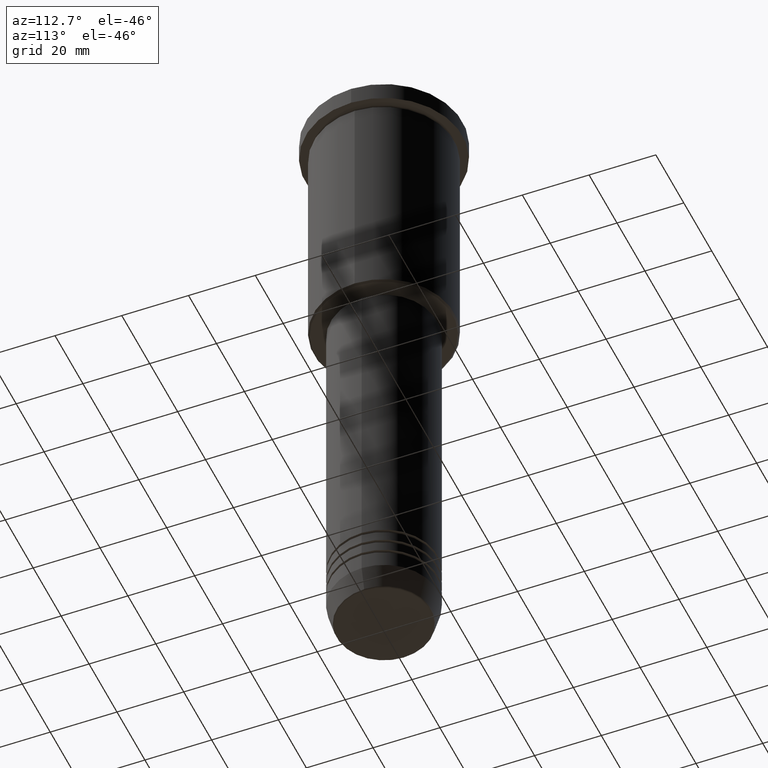
[diagram: clean part render]
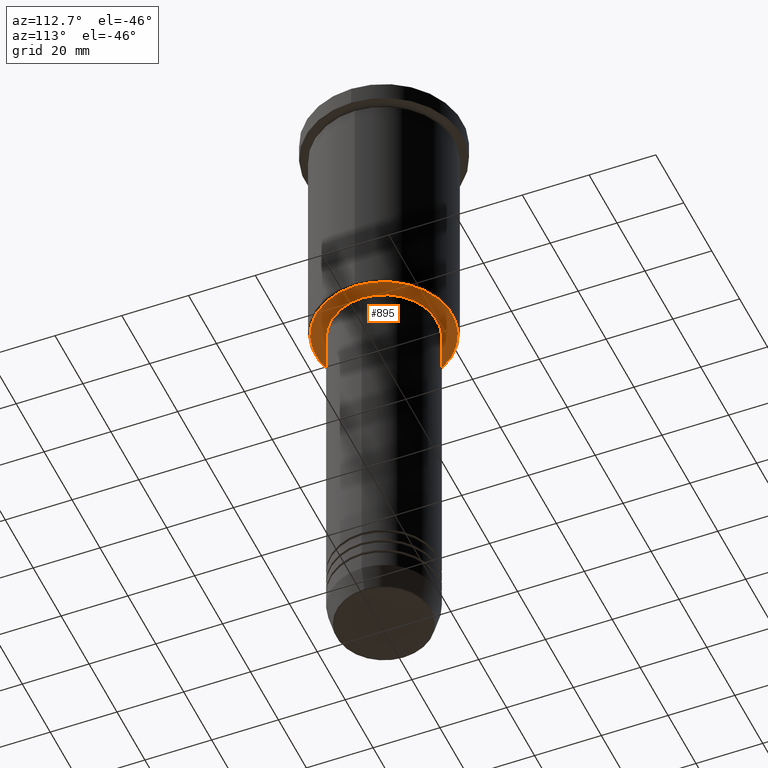
[diagram: same view with one face highlighted and labeled with its STEP entity id]
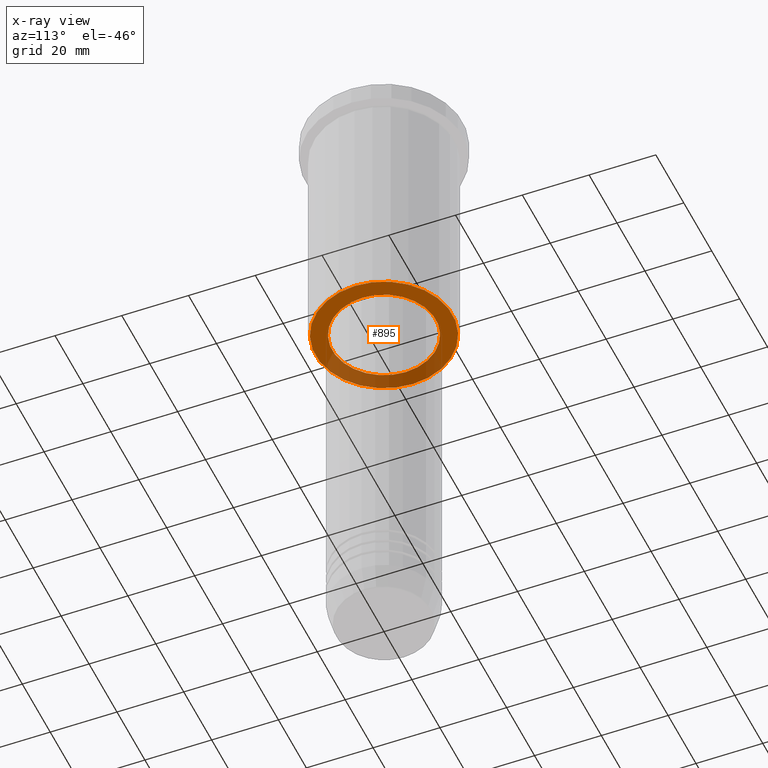
[diagram: x-ray of the same camera — body ghosted, the highlighted face saturated]
A machine part, auxiliary view. The second image highlights one B-rep face of the part: STEP entity #895.
The next image is the same camera in x-ray: the body ghosted, the highlighted face saturated — about 32% of this face is hidden behind the body in this view.
In plain terms, the highlighted planar face has unit normal (0, 0, -1).
Its self-contained STEP definition (entity closure, byte-faithful):
#24 = DIRECTION ( 'NONE',  ( -1.000000000000000000, 0.000000000000000000, 0.000000000000000000 ) ) ;
#32 = CIRCLE ( 'NONE', #690, 20.49999999999998934 ) ;
#48 = CIRCLE ( 'NONE', #622, 20.49999999999998934 ) ;
#55 = DIRECTION ( 'NONE',  ( -1.000000000000000000, 0.000000000000000000, -0.000000000000000000 ) ) ;
#71 = ORIENTED_EDGE ( 'NONE', *, *, #1031, .T. ) ;
#86 = CIRCLE ( 'NONE', #1148, 15.50000000000000000 ) ;
#113 = EDGE_LOOP ( 'NONE', ( #962, #644 ) ) ;
#163 = DIRECTION ( 'NONE',  ( 1.000000000000000000, 0.000000000000000000, 0.000000000000000000 ) ) ;
#224 = DIRECTION ( 'NONE',  ( -1.000000000000000000, 0.000000000000000000, 0.000000000000000000 ) ) ;
#261 = CARTESIAN_POINT ( 'NONE',  ( -15.50000000000000000, 1.898202538678397557E-15, -76.00000000000001421 ) ) ;
#311 = DIRECTION ( 'NONE',  ( 0.000000000000000000, 0.000000000000000000, -1.000000000000000000 ) ) ;
#356 = DIRECTION ( 'NONE',  ( 0.000000000000000000, 0.000000000000000000, -1.000000000000000000 ) ) ;
#409 = DIRECTION ( 'NONE',  ( 1.000000000000000000, 0.000000000000000000, 0.000000000000000000 ) ) ;
#420 = CARTESIAN_POINT ( 'NONE',  ( 15.50000000000000000, 0.000000000000000000, -76.00000000000001421 ) ) ;
#515 = VERTEX_POINT ( 'NONE', #261 ) ;
#561 = ORIENTED_EDGE ( 'NONE', *, *, #831, .T. ) ;
#589 = VERTEX_POINT ( 'NONE', #420 ) ;
#616 = CARTESIAN_POINT ( 'NONE',  ( 0.000000000000000000, 0.000000000000000000, -76.00000000000001421 ) ) ;
#622 = AXIS2_PLACEMENT_3D ( 'NONE', #752, #311, #224 ) ;
#644 = ORIENTED_EDGE ( 'NONE', *, *, #930, .T. ) ;
#690 = AXIS2_PLACEMENT_3D ( 'NONE', #855, #840, #24 ) ;
#752 = CARTESIAN_POINT ( 'NONE',  ( 0.000000000000000000, 0.000000000000000000, -76.00000000000001421 ) ) ;
#764 = AXIS2_PLACEMENT_3D ( 'NONE', #1038, #356, #55 ) ;
#779 = FACE_OUTER_BOUND ( 'NONE', #113, .T. ) ;
#784 = CIRCLE ( 'NONE', #808, 15.50000000000000000 ) ;
#808 = AXIS2_PLACEMENT_3D ( 'NONE', #616, #966, #163 ) ;
#811 = CARTESIAN_POINT ( 'NONE',  ( -20.49999999999998934, 2.541142108230757480E-15, -76.00000000000001421 ) ) ;
#831 = EDGE_CURVE ( 'NONE', #589, #515, #86, .T. ) ;
#840 = DIRECTION ( 'NONE',  ( 0.000000000000000000, 0.000000000000000000, -1.000000000000000000 ) ) ;
#841 = CARTESIAN_POINT ( 'NONE',  ( 0.000000000000000000, 0.000000000000000000, -76.00000000000001421 ) ) ;
#850 = EDGE_LOOP ( 'NONE', ( #561, #71 ) ) ;
#855 = CARTESIAN_POINT ( 'NONE',  ( 0.000000000000000000, 0.000000000000000000, -76.00000000000001421 ) ) ;
#866 = FACE_BOUND ( 'NONE', #850, .T. ) ;
#895 = ADVANCED_FACE ( 'NONE', ( #779, #866 ), #1143, .T. ) ;
#926 = VERTEX_POINT ( 'NONE', #952 ) ;
#930 = EDGE_CURVE ( 'NONE', #1013, #926, #48, .T. ) ;
#936 = EDGE_CURVE ( 'NONE', #926, #1013, #32, .T. ) ;
#952 = CARTESIAN_POINT ( 'NONE',  ( 20.49999999999998934, 0.000000000000000000, -76.00000000000001421 ) ) ;
#962 = ORIENTED_EDGE ( 'NONE', *, *, #936, .T. ) ;
#966 = DIRECTION ( 'NONE',  ( -0.000000000000000000, -0.000000000000000000, 1.000000000000000000 ) ) ;
#1013 = VERTEX_POINT ( 'NONE', #811 ) ;
#1031 = EDGE_CURVE ( 'NONE', #515, #589, #784, .T. ) ;
#1038 = CARTESIAN_POINT ( 'NONE',  ( 0.000000000000000000, 21.00000000000000000, -76.00000000000001421 ) ) ;
#1120 = DIRECTION ( 'NONE',  ( -0.000000000000000000, -0.000000000000000000, 1.000000000000000000 ) ) ;
#1143 = PLANE ( 'NONE',  #764 ) ;
#1148 = AXIS2_PLACEMENT_3D ( 'NONE', #841, #1120, #409 ) ;